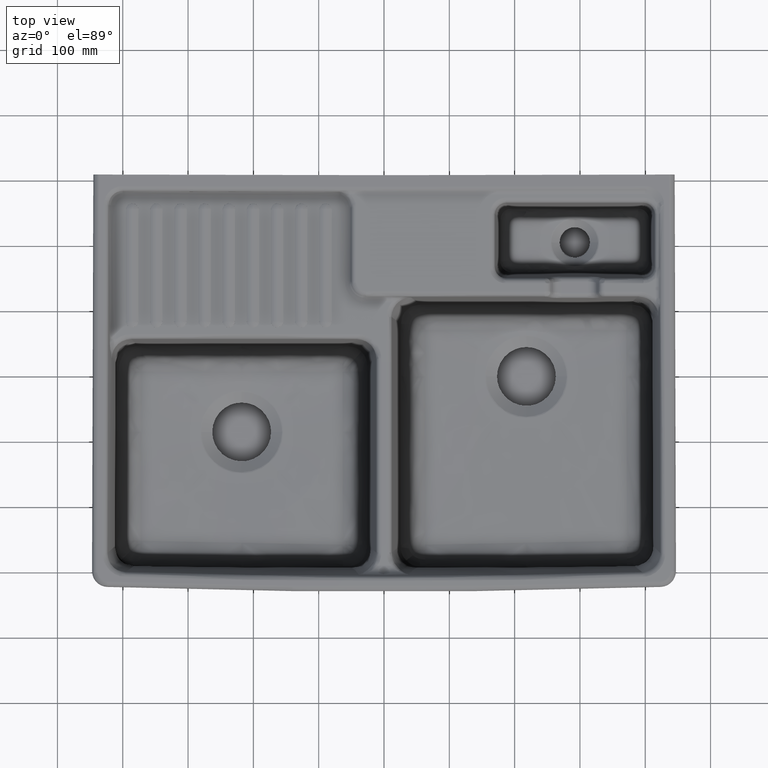
[diagram: clean part render]
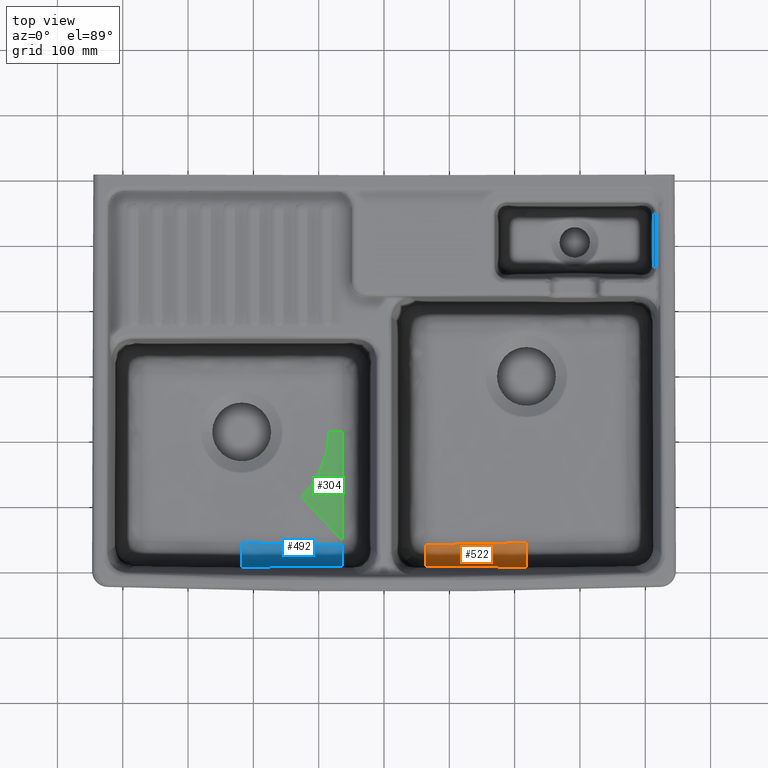
[diagram: same view with three faces highlighted in distinct colors, each labeled with its STEP entity id]
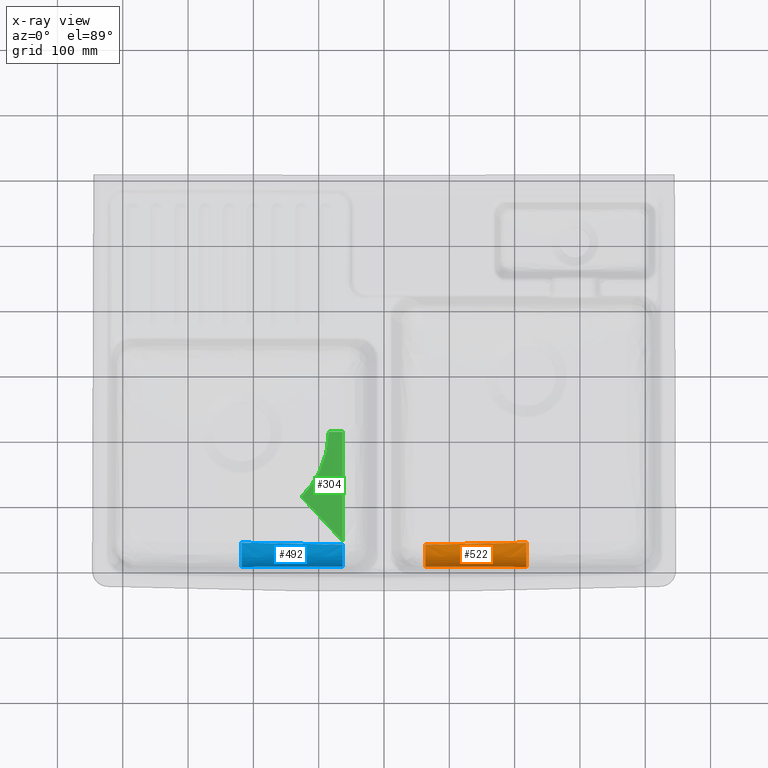
[diagram: x-ray of the same camera — body ghosted, the three highlighted faces saturated]
A machine part, top view with three faces highlighted in distinct colors.
The next image is the same camera in x-ray (body ghosted, the three faces saturated) — at least one of them is partly hidden behind the body in this view.
Their STEP definitions:

[orange] entity #522 — the highlighted face is a freeform B-spline surface patch.
#522=ADVANCED_FACE('',(#1379),#947,.T.);
#947=B_SPLINE_SURFACE_WITH_KNOTS('',6,4,((#32432,#32433,#32434,#32435,#32436,
#32437,#32438,#32439,#32440,#32441,#32442,#32443,#32444),(#32445,#32446,
#32447,#32448,#32449,#32450,#32451,#32452,#32453,#32454,#32455,#32456,#32457),
(#32458,#32459,#32460,#32461,#32462,#32463,#32464,#32465,#32466,#32467,
#32468,#32469,#32470),(#32471,#32472,#32473,#32474,#32475,#32476,#32477,
#32478,#32479,#32480,#32481,#32482,#32483),(#32484,#32485,#32486,#32487,
#32488,#32489,#32490,#32491,#32492,#32493,#32494,#32495,#32496),(#32497,
#32498,#32499,#32500,#32501,#32502,#32503,#32504,#32505,#32506,#32507,#32508,
#32509),(#32510,#32511,#32512,#32513,#32514,#32515,#32516,#32517,#32518,
#32519,#32520,#32521,#32522),(#32523,#32524,#32525,#32526,#32527,#32528,
#32529,#32530,#32531,#32532,#32533,#32534,#32535),(#32536,#32537,#32538,
#32539,#32540,#32541,#32542,#32543,#32544,#32545,#32546,#32547,#32548),
(#32549,#32550,#32551,#32552,#32553,#32554,#32555,#32556,#32557,#32558,
#32559,#32560,#32561),(#32562,#32563,#32564,#32565,#32566,#32567,#32568,
#32569,#32570,#32571,#32572,#32573,#32574),(#32575,#32576,#32577,#32578,
#32579,#32580,#32581,#32582,#32583,#32584,#32585,#32586,#32587),(#32588,
#32589,#32590,#32591,#32592,#32593,#32594,#32595,#32596,#32597,#32598,#32599,
#32600),(#32601,#32602,#32603,#32604,#32605,#32606,#32607,#32608,#32609,
#32610,#32611,#32612,#32613),(#32614,#32615,#32616,#32617,#32618,#32619,
#32620,#32621,#32622,#32623,#32624,#32625,#32626),(#32627,#32628,#32629,
#32630,#32631,#32632,#32633,#32634,#32635,#32636,#32637,#32638,#32639),
(#32640,#32641,#32642,#32643,#32644,#32645,#32646,#32647,#32648,#32649,
#32650,#32651,#32652),(#32653,#32654,#32655,#32656,#32657,#32658,#32659,
#32660,#32661,#32662,#32663,#32664,#32665),(#32666,#32667,#32668,#32669,
#32670,#32671,#32672,#32673,#32674,#32675,#32676,#32677,#32678)),
 .UNSPECIFIED.,.F.,.F.,.F.,(7,6,6,7),(5,4,4,5),(0.,0.00980392156862745,
0.990196078431373,1.),(0.,0.0099009900990099,0.990197039505931,1.),
 .UNSPECIFIED.);
#1379=FACE_OUTER_BOUND('',#1840,.T.);
#1840=EDGE_LOOP('',(#3787,#3788,#3789,#3790,#3791,#3792));
#3787=ORIENTED_EDGE('',*,*,#6047,.F.);
#3788=ORIENTED_EDGE('',*,*,#6045,.T.);
#3789=ORIENTED_EDGE('',*,*,#5923,.T.);
#3790=ORIENTED_EDGE('',*,*,#5925,.T.);
#3791=ORIENTED_EDGE('',*,*,#5927,.T.);
#3792=ORIENTED_EDGE('',*,*,#6048,.F.);
#4775=VERTEX_POINT('',#24862);
#4850=VERTEX_POINT('',#28327);
#4853=VERTEX_POINT('',#28507);
#4854=VERTEX_POINT('',#28540);
#4931=VERTEX_POINT('',#32240);
#4932=VERTEX_POINT('',#32422);
#5923=EDGE_CURVE('',#4850,#4775,#7118,.T.);
#5925=EDGE_CURVE('',#4775,#4853,#7120,.T.);
#5927=EDGE_CURVE('',#4853,#4854,#7122,.T.);
#6045=EDGE_CURVE('',#4931,#4850,#7240,.T.);
#6047=EDGE_CURVE('',#4931,#4932,#7242,.T.);
#6048=EDGE_CURVE('',#4932,#4854,#7243,.T.);
#7118=B_SPLINE_CURVE_WITH_KNOTS('',3,(#28461,#28462,#28463,#28464),
 .UNSPECIFIED.,.F.,.F.,(4,4),(0.,1.),.UNSPECIFIED.);
#7120=B_SPLINE_CURVE_WITH_KNOTS('',4,(#28508,#28509,#28510,#28511,#28512),
 .UNSPECIFIED.,.F.,.F.,(5,5),(0.,1.),.UNSPECIFIED.);
#7122=B_SPLINE_CURVE_WITH_KNOTS('',4,(#28541,#28542,#28543,#28544,#28545),
 .UNSPECIFIED.,.F.,.F.,(5,5),(0.,1.),.UNSPECIFIED.);
#7240=B_SPLINE_CURVE_WITH_KNOTS('',4,(#32227,#32228,#32229,#32230,#32231,
#32232,#32233,#32234,#32235,#32236,#32237,#32238,#32239),.UNSPECIFIED.,
 .F.,.F.,(5,4,4,5),(0.,2.20367828642686E-5,0.999999365137053,1.),
 .UNSPECIFIED.);
#7242=B_SPLINE_CURVE_WITH_KNOTS('',3,(#32416,#32417,#32418,#32419,#32420,
#32421),.UNSPECIFIED.,.F.,.F.,(4,2,4),(0.,0.5,1.),.UNSPECIFIED.);
#7243=B_SPLINE_CURVE_WITH_KNOTS('',4,(#32423,#32424,#32425,#32426,#32427,
#32428,#32429,#32430,#32431),.UNSPECIFIED.,.F.,.F.,(5,4,5),(0.,3.90965346768355E-5,
1.),.UNSPECIFIED.);
#24862=CARTESIAN_POINT('',(63.2057800198923,-257.820371065136,-177.534524002025));
#28327=CARTESIAN_POINT('',(217.999999952425,-254.825400860688,-178.25352731095));
#28461=CARTESIAN_POINT('',(218.,-254.825400651694,-178.253521380249));
#28462=CARTESIAN_POINT('',(166.400899993179,-255.823880322406,-178.22295236493));
#28463=CARTESIAN_POINT('',(114.803340159917,-256.822329833414,-177.894827462834));
#28464=CARTESIAN_POINT('',(63.2057799999999,-257.820732138108,-177.53451909626));
#28507=CARTESIAN_POINT('',(63.2057793043461,-265.858090734706,-176.254622383121));
#28508=CARTESIAN_POINT('',(63.20578,-257.820732138108,-177.53451909626));
#28509=CARTESIAN_POINT('',(63.2057799998862,-259.90655503433,-177.502998394889));
#28510=CARTESIAN_POINT('',(63.2057795613976,-261.946607478722,-177.269210507462));
#28511=CARTESIAN_POINT('',(63.2057787169865,-263.933062064936,-176.848103295965));
#28512=CARTESIAN_POINT('',(63.2057775087137,-265.85809142506,-176.254624622383));
#28540=CARTESIAN_POINT('',(63.20576,-280.81509,-166.51808));
#28541=CARTESIAN_POINT('',(63.2057775087137,-265.85809142506,-176.254624622383));
#28542=CARTESIAN_POINT('',(63.2057748216729,-270.139105300877,-174.934805564433));
#28543=CARTESIAN_POINT('',(63.2057703351197,-274.116334880762,-172.762507051678));
#28544=CARTESIAN_POINT('',(63.2057645116555,-277.703691973891,-169.902131014568));
#28545=CARTESIAN_POINT('',(63.2057580489042,-280.815089329528,-166.518079383552));
#32227=CARTESIAN_POINT('',(218.000000000009,-292.606604449561,-139.739663774872));
#32228=CARTESIAN_POINT('',(218.000000000009,-292.606595837171,-139.740005331154));
#32229=CARTESIAN_POINT('',(218.000000000009,-292.60658722478,-139.740346887436));
#32230=CARTESIAN_POINT('',(218.000000000009,-292.60657861239,-139.740688443718));
#32231=CARTESIAN_POINT('',(218.000000000009,-292.60657,-139.74103));
#32232=CARTESIAN_POINT('',(218.000000000009,-292.21576,-155.24005));
#32233=CARTESIAN_POINT('',(218.000000000009,-283.7851,-168.96762));
#32234=CARTESIAN_POINT('',(218.000000000009,-270.31989,-177.71001));
#32235=CARTESIAN_POINT('',(218.000000000009,-254.82544,-178.25352));
#32236=CARTESIAN_POINT('',(218.000000000009,-254.825430162924,-178.253520345062));
#32237=CARTESIAN_POINT('',(218.000000000009,-254.825420325849,-178.253520690124));
#32238=CARTESIAN_POINT('',(218.000000000009,-254.825410488774,-178.253521035187));
#32239=CARTESIAN_POINT('',(218.000000000009,-254.825400651699,-178.253521380249));
#32240=CARTESIAN_POINT('',(218.000508237254,-292.606628218391,-139.739664313358));
#32416=CARTESIAN_POINT('',(218.000580837141,-292.606650224797,-139.739664869517));
#32417=CARTESIAN_POINT('',(192.164233003646,-292.502845780053,-139.733178668525));
#32418=CARTESIAN_POINT('',(166.327136992097,-292.309271055832,-139.726338551042));
#32419=CARTESIAN_POINT('',(114.71604809666,-292.046065347175,-139.72402705489));
#32420=CARTESIAN_POINT('',(88.9446656187388,-291.987950458697,-139.729010979282));
#32421=CARTESIAN_POINT('',(63.2046941400738,-291.99791865294,-139.73987816516));
#32422=CARTESIAN_POINT('',(63.2052070694674,-291.997928374174,-139.739878605077));
#32423=CARTESIAN_POINT('',(63.2057199984361,-291.997938089054,-139.739879198553));
#32424=CARTESIAN_POINT('',(63.2057199988271,-291.99792606679,-139.740166898915));
#32425=CARTESIAN_POINT('',(63.205719999218,-291.997914044527,-139.740454599276));
#32426=CARTESIAN_POINT('',(63.205719999609,-291.997902022263,-139.740742299638));
#32427=CARTESIAN_POINT('',(63.20572,-291.99789,-139.74103));
#32428=CARTESIAN_POINT('',(63.20573,-291.6904,-147.09946));
#32429=CARTESIAN_POINT('',(63.20573,-289.49448,-154.45363));
#32430=CARTESIAN_POINT('',(63.20575,-285.75455,-161.14577));
#32431=CARTESIAN_POINT('',(63.20576,-280.81509,-166.51808));
#32432=CARTESIAN_POINT('',(219.5479762724,-254.16864853728,-178.27604574192));
#32433=CARTESIAN_POINT('',(219.5479754543,-254.32535990296,-178.27064350644));
#32434=CARTESIAN_POINT('',(219.5479746362,-254.48207126864,-178.26524127096));
#32435=CARTESIAN_POINT('',(219.5479738181,-254.63878263432,-178.25983903548));
#32436=CARTESIAN_POINT('',(219.547973,-254.795494,-178.2544368));
#32437=CARTESIAN_POINT('',(219.547892,-270.3114708,-177.719562));
#32438=CARTESIAN_POINT('',(219.5478392,-283.7855836,-168.9742458));
#32439=CARTESIAN_POINT('',(219.5476514,-292.2066946,-155.2448428));
#32440=CARTESIAN_POINT('',(219.5476022,-292.6128088,-139.74103));
#32441=CARTESIAN_POINT('',(219.547601708,-292.616869942,-139.585991872));
#32442=CARTESIAN_POINT('',(219.547601216,-292.620931084,-139.430953744));
#32443=CARTESIAN_POINT('',(219.547600724,-292.624992226,-139.275915616));
#32444=CARTESIAN_POINT('',(219.547600232,-292.629053368,-139.120877488));
#32445=CARTESIAN_POINT('',(219.289980227,-254.1737844844,-178.2759510856));
#32446=CARTESIAN_POINT('',(219.28997954525,-254.3304596133,-178.2705343142));
#32447=CARTESIAN_POINT('',(219.2899788635,-254.4871347422,-178.2651175428));
#32448=CARTESIAN_POINT('',(219.28997818175,-254.6438098711,-178.2597007714));
#32449=CARTESIAN_POINT('',(219.2899775,-254.800485,-178.254284));
#32450=CARTESIAN_POINT('',(219.28991,-270.312874,-177.71797));
#32451=CARTESIAN_POINT('',(219.289866,-283.785503,-168.9731415));
#32452=CARTESIAN_POINT('',(219.2897095,-292.2082055,-155.244044));
#32453=CARTESIAN_POINT('',(219.2896685,-292.611769,-139.74103));
#32454=CARTESIAN_POINT('',(219.28966809,-292.615804635,-139.58599986));
#32455=CARTESIAN_POINT('',(219.28966768,-292.61984027,-139.43096972));
#32456=CARTESIAN_POINT('',(219.28966727,-292.623875905,-139.27593958));
#32457=CARTESIAN_POINT('',(219.28966686,-292.62791154,-139.12090944));
#32458=CARTESIAN_POINT('',(219.0319841816,-254.17892043152,-178.27585642928));
#32459=CARTESIAN_POINT('',(219.0319836362,-254.33555932364,-178.27042512196));
#32460=CARTESIAN_POINT('',(219.0319830908,-254.49219821576,-178.26499381464));
#32461=CARTESIAN_POINT('',(219.0319825454,-254.64883710788,-178.25956250732));
#32462=CARTESIAN_POINT('',(219.031982,-254.805476,-178.2541312));
#32463=CARTESIAN_POINT('',(219.031928,-270.3142772,-177.716378));
#32464=CARTESIAN_POINT('',(219.0318928,-283.7854224,-168.9720372));
#32465=CARTESIAN_POINT('',(219.0317676,-292.2097164,-155.2432452));
#32466=CARTESIAN_POINT('',(219.0317348,-292.6107292,-139.74103));
#32467=CARTESIAN_POINT('',(219.031734472,-292.614739328,-139.586007848));
#32468=CARTESIAN_POINT('',(219.031734144,-292.618749456,-139.430985696));
#32469=CARTESIAN_POINT('',(219.031733816,-292.622759584,-139.275963544));
#32470=CARTESIAN_POINT('',(219.031733488,-292.626769712,-139.120941392));
#32471=CARTESIAN_POINT('',(218.7739881362,-254.18405637864,-178.27576177296));
#32472=CARTESIAN_POINT('',(218.77398772715,-254.34065903398,-178.27031592972));
#32473=CARTESIAN_POINT('',(218.7739873181,-254.49726168932,-178.26487008648));
#32474=CARTESIAN_POINT('',(218.77398690905,-254.65386434466,-178.25942424324));
#32475=CARTESIAN_POINT('',(218.7739865,-254.810467,-178.2539784));
#32476=CARTESIAN_POINT('',(218.773946,-270.3156804,-177.714786));
#32477=CARTESIAN_POINT('',(218.7739196,-283.7853418,-168.9709329));
#32478=CARTESIAN_POINT('',(218.7738257,-292.2112273,-155.2424464));
#32479=CARTESIAN_POINT('',(218.7738011,-292.6096894,-139.74103));
#32480=CARTESIAN_POINT('',(218.773800854,-292.613674021,-139.586015836));
#32481=CARTESIAN_POINT('',(218.773800608,-292.617658642,-139.431001672));
#32482=CARTESIAN_POINT('',(218.773800362,-292.621643263,-139.275987508));
#32483=CARTESIAN_POINT('',(218.773800116,-292.625627884,-139.120973344));
#32484=CARTESIAN_POINT('',(218.5159920908,-254.18919232576,-178.27566711664));
#32485=CARTESIAN_POINT('',(218.5159918181,-254.34575874432,-178.27020673748));
#32486=CARTESIAN_POINT('',(218.5159915454,-254.50232516288,-178.26474635832));
#32487=CARTESIAN_POINT('',(218.5159912727,-254.65889158144,-178.25928597916));
#32488=CARTESIAN_POINT('',(218.515991,-254.815458,-178.2538256));
#32489=CARTESIAN_POINT('',(218.515964,-270.3170836,-177.713194));
#32490=CARTESIAN_POINT('',(218.5159464,-283.7852612,-168.9698286));
#32491=CARTESIAN_POINT('',(218.5158838,-292.2127382,-155.2416476));
#32492=CARTESIAN_POINT('',(218.5158674,-292.6086496,-139.74103));
#32493=CARTESIAN_POINT('',(218.515867236,-292.612608714,-139.586023824));
#32494=CARTESIAN_POINT('',(218.515867072,-292.616567828,-139.431017648));
#32495=CARTESIAN_POINT('',(218.515866908,-292.620526942,-139.276011472));
#32496=CARTESIAN_POINT('',(218.515866744,-292.624486056,-139.121005296));
#32497=CARTESIAN_POINT('',(218.2579960454,-254.19432827288,-178.27557246032));
#32498=CARTESIAN_POINT('',(218.25799590905,-254.35085845466,-178.27009754524));
#32499=CARTESIAN_POINT('',(218.2579957727,-254.50738863644,-178.26462263016));
#32500=CARTESIAN_POINT('',(218.25799563635,-254.66391881822,-178.25914771508));
#32501=CARTESIAN_POINT('',(218.2579955,-254.820449,-178.2536728));
#32502=CARTESIAN_POINT('',(218.257982,-270.3184868,-177.711602));
#32503=CARTESIAN_POINT('',(218.2579732,-283.7851806,-168.9687243));
#32504=CARTESIAN_POINT('',(218.2579419,-292.2142491,-155.2408488));
#32505=CARTESIAN_POINT('',(218.2579337,-292.6076098,-139.74103));
#32506=CARTESIAN_POINT('',(218.257933618,-292.611543407,-139.586031812));
#32507=CARTESIAN_POINT('',(218.257933536,-292.615477014,-139.431033624));
#32508=CARTESIAN_POINT('',(218.257933454,-292.619410621,-139.276035436));
#32509=CARTESIAN_POINT('',(218.257933372,-292.623344228,-139.121037248));
#32510=CARTESIAN_POINT('',(218.,-254.19946422,-178.275477804));
#32511=CARTESIAN_POINT('',(218.,-254.355958165,-178.269988353));
#32512=CARTESIAN_POINT('',(218.,-254.51245211,-178.264498902));
#32513=CARTESIAN_POINT('',(218.,-254.668946055,-178.259009451));
#32514=CARTESIAN_POINT('',(218.,-254.82544,-178.25352));
#32515=CARTESIAN_POINT('',(218.,-270.31989,-177.71001));
#32516=CARTESIAN_POINT('',(218.,-283.7851,-168.96762));
#32517=CARTESIAN_POINT('',(218.,-292.21576,-155.24005));
#32518=CARTESIAN_POINT('',(218.,-292.60657,-139.74103));
#32519=CARTESIAN_POINT('',(218.,-292.6104781,-139.5860398));
#32520=CARTESIAN_POINT('',(218.,-292.6143862,-139.4310496));
#32521=CARTESIAN_POINT('',(218.,-292.6182943,-139.2760594));
#32522=CARTESIAN_POINT('',(218.,-292.6222024,-139.1210692));
#32523=CARTESIAN_POINT('',(192.20039546,-254.713058932,-178.266012172));
#32524=CARTESIAN_POINT('',(192.200409095,-254.865929199,-178.259069129));
#32525=CARTESIAN_POINT('',(192.20042273,-255.018799466,-178.252126086));
#32526=CARTESIAN_POINT('',(192.200436365,-255.171669733,-178.245183043));
#32527=CARTESIAN_POINT('',(192.20045,-255.32454,-178.23824));
#32528=CARTESIAN_POINT('',(192.2018,-270.46021,-177.55081));
#32529=CARTESIAN_POINT('',(192.20268,-283.77704,-168.85719));
#32530=CARTESIAN_POINT('',(192.20581,-292.36685,-155.16017));
#32531=CARTESIAN_POINT('',(192.20663,-292.50259,-139.74103));
#32532=CARTESIAN_POINT('',(192.2066382,-292.5039474,-139.5868386));
#32533=CARTESIAN_POINT('',(192.2066464,-292.5053048,-139.4326472));
#32534=CARTESIAN_POINT('',(192.2066546,-292.5066622,-139.2784558));
#32535=CARTESIAN_POINT('',(192.2066628,-292.5080196,-139.1242644));
#32536=CARTESIAN_POINT('',(166.401102336,-255.2133273,-178.171998456));
#32537=CARTESIAN_POINT('',(166.401134252,-255.365905475,-178.170663842));
#32538=CARTESIAN_POINT('',(166.401166168,-255.51848365,-178.169329228));
#32539=CARTESIAN_POINT('',(166.401198084,-255.671061825,-178.167994614));
#32540=CARTESIAN_POINT('',(166.40123,-255.82364,-178.16666));
#32541=CARTESIAN_POINT('',(166.40439,-270.93039,-178.03452));
#32542=CARTESIAN_POINT('',(166.40759,-283.67145,-168.65327));
#32543=CARTESIAN_POINT('',(166.40909,-291.0672,-154.68199));
#32544=CARTESIAN_POINT('',(166.41051,-292.32346,-139.74103));
#32545=CARTESIAN_POINT('',(166.4105242,-292.3360226,-139.5916204));
#32546=CARTESIAN_POINT('',(166.4105384,-292.3485852,-139.4422108));
#32547=CARTESIAN_POINT('',(166.4105526,-292.3611478,-139.2928012));
#32548=CARTESIAN_POINT('',(166.4105668,-292.3737104,-139.1433916));
#32549=CARTESIAN_POINT('',(140.602114456,-255.72255548,-178.082372244));
#32550=CARTESIAN_POINT('',(140.602143342,-255.87260411,-178.073589183));
#32551=CARTESIAN_POINT('',(140.602172228,-256.02265274,-178.064806122));
#32552=CARTESIAN_POINT('',(140.602201114,-256.17270137,-178.056023061));
#32553=CARTESIAN_POINT('',(140.60223,-256.32275,-178.04724));
#32554=CARTESIAN_POINT('',(140.60509,-271.17905,-177.17763));
#32555=CARTESIAN_POINT('',(140.60654,-283.68381,-168.47897));
#32556=CARTESIAN_POINT('',(140.60791,-292.45505,-154.48921));
#32557=CARTESIAN_POINT('',(140.61055,-292.13708,-139.74103));
#32558=CARTESIAN_POINT('',(140.6105764,-292.1339003,-139.5935482));
#32559=CARTESIAN_POINT('',(140.6106028,-292.1307206,-139.4460664));
#32560=CARTESIAN_POINT('',(140.6106292,-292.1275409,-139.2985846));
#32561=CARTESIAN_POINT('',(140.6106556,-292.1243612,-139.1511028));
#32562=CARTESIAN_POINT('',(114.803441104,-256.243581872,-177.896008652));
#32563=CARTESIAN_POINT('',(114.803423328,-256.388146404,-177.894911489));
#32564=CARTESIAN_POINT('',(114.803405552,-256.532710936,-177.893814326));
#32565=CARTESIAN_POINT('',(114.803387776,-256.677275468,-177.892717163));
#32566=CARTESIAN_POINT('',(114.80337,-256.82184,-177.89162));
#32567=CARTESIAN_POINT('',(114.80161,-271.13516,-177.78299));
#32568=CARTESIAN_POINT('',(114.80415,-283.77353,-168.29446));
#32569=CARTESIAN_POINT('',(114.80827,-290.91852,-154.48538));
#32570=CARTESIAN_POINT('',(114.8075,-292.01508,-139.74103));
#32571=CARTESIAN_POINT('',(114.8074923,-292.0260456,-139.5935865));
#32572=CARTESIAN_POINT('',(114.8074846,-292.0370112,-139.446143));
#32573=CARTESIAN_POINT('',(114.8074769,-292.0479768,-139.2986995));
#32574=CARTESIAN_POINT('',(114.8074692,-292.0589424,-139.151256));
#32575=CARTESIAN_POINT('',(89.004496976,-256.73978418,-177.729366512));
#32576=CARTESIAN_POINT('',(89.004512732,-256.885068135,-177.725697384));
#32577=CARTESIAN_POINT('',(89.004528488,-257.03035209,-177.722028256));
#32578=CARTESIAN_POINT('',(89.004544244,-257.175636045,-177.718359128));
#32579=CARTESIAN_POINT('',(89.00456,-257.32092,-177.71469));
#32580=CARTESIAN_POINT('',(89.00612,-271.70547,-177.35141));
#32581=CARTESIAN_POINT('',(89.00517,-283.76093,-168.08298));
#32582=CARTESIAN_POINT('',(89.00314,-291.54376,-153.99164));
#32583=CARTESIAN_POINT('',(89.00417,-291.98758,-139.74103));
#32584=CARTESIAN_POINT('',(89.0041803,-291.9920182,-139.5985239));
#32585=CARTESIAN_POINT('',(89.0041906,-291.9964564,-139.4560178));
#32586=CARTESIAN_POINT('',(89.0042009,-292.0008946,-139.3135117));
#32587=CARTESIAN_POINT('',(89.0042112,-292.0053328,-139.1710056));
#32588=CARTESIAN_POINT('',(63.20578,-257.25082854,-177.54311702));
#32589=CARTESIAN_POINT('',(63.20578,-257.393123905,-177.540970265));
#32590=CARTESIAN_POINT('',(63.20578,-257.53541927,-177.53882351));
#32591=CARTESIAN_POINT('',(63.20578,-257.677714635,-177.536676755));
#32592=CARTESIAN_POINT('',(63.20578,-257.82001,-177.53453));
#32593=CARTESIAN_POINT('',(63.20578,-271.90866,-177.32198));
#32594=CARTESIAN_POINT('',(63.20576,-283.90921,-167.88138));
#32595=CARTESIAN_POINT('',(63.20573,-291.40961,-153.81898));
#32596=CARTESIAN_POINT('',(63.20572,-291.99789,-139.74103));
#32597=CARTESIAN_POINT('',(63.2057199,-292.0037728,-139.6002505));
#32598=CARTESIAN_POINT('',(63.2057198,-292.0096556,-139.459471));
#32599=CARTESIAN_POINT('',(63.2057197,-292.0155384,-139.3186915));
#32600=CARTESIAN_POINT('',(63.2057196,-292.0214212,-139.177912));
#32601=CARTESIAN_POINT('',(62.94779283024,-257.2559389836,-177.54125452508));
#32602=CARTESIAN_POINT('',(62.94779267268,-257.3982044627,-177.53912299381));
#32603=CARTESIAN_POINT('',(62.94779251512,-257.5404699418,-177.53699146254));
#32604=CARTESIAN_POINT('',(62.94779235756,-257.6827354209,-177.53485993127));
#32605=CARTESIAN_POINT('',(62.9477922,-257.8250009,-177.5327284));
#32606=CARTESIAN_POINT('',(62.9477766,-271.9106919,-177.3216857));
#32607=CARTESIAN_POINT('',(62.9477659,-283.9106928,-167.879364));
#32608=CARTESIAN_POINT('',(62.9477559,-291.4082685,-153.8172534));
#32609=CARTESIAN_POINT('',(62.9477355,-291.9979931,-139.74103));
#32610=CARTESIAN_POINT('',(62.947735296,-292.003890346,-139.600267766));
#32611=CARTESIAN_POINT('',(62.947735092,-292.009787592,-139.459505532));
#32612=CARTESIAN_POINT('',(62.947734888,-292.015684838,-139.318743298));
#32613=CARTESIAN_POINT('',(62.947734684,-292.021582084,-139.177981064));
#32614=CARTESIAN_POINT('',(62.68980566048,-257.2610494272,-177.53939203016));
#32615=CARTESIAN_POINT('',(62.68980534536,-257.4032850204,-177.53727572262));
#32616=CARTESIAN_POINT('',(62.68980503024,-257.5455206136,-177.53515941508));
#32617=CARTESIAN_POINT('',(62.68980471512,-257.6877562068,-177.53304310754));
#32618=CARTESIAN_POINT('',(62.6898044,-257.8299918,-177.5309268));
#32619=CARTESIAN_POINT('',(62.6897732,-271.9127238,-177.3213914));
#32620=CARTESIAN_POINT('',(62.6897718,-283.9121756,-167.877348));
#32621=CARTESIAN_POINT('',(62.6897818,-291.406927,-153.8155268));
#32622=CARTESIAN_POINT('',(62.689751,-291.9980962,-139.74103));
#32623=CARTESIAN_POINT('',(62.689750692,-292.004007892,-139.600285032));
#32624=CARTESIAN_POINT('',(62.689750384,-292.009919584,-139.459540064));
#32625=CARTESIAN_POINT('',(62.689750076,-292.015831276,-139.318795096));
#32626=CARTESIAN_POINT('',(62.689749768,-292.021742968,-139.178050128));
#32627=CARTESIAN_POINT('',(62.43181849072,-257.2661598708,-177.53752953524));
#32628=CARTESIAN_POINT('',(62.43181801804,-257.4083655781,-177.53542845143));
#32629=CARTESIAN_POINT('',(62.43181754536,-257.5505712854,-177.53332736762));
#32630=CARTESIAN_POINT('',(62.43181707268,-257.6927769927,-177.53122628381));
#32631=CARTESIAN_POINT('',(62.4318166,-257.8349827,-177.5291252));
#32632=CARTESIAN_POINT('',(62.4317698,-271.9147557,-177.3210971));
#32633=CARTESIAN_POINT('',(62.4317777,-283.9136584,-167.875332));
#32634=CARTESIAN_POINT('',(62.4318077,-291.4055855,-153.8138002));
#32635=CARTESIAN_POINT('',(62.4317665,-291.9981993,-139.74103));
#32636=CARTESIAN_POINT('',(62.431766088,-292.004125438,-139.600302298));
#32637=CARTESIAN_POINT('',(62.431765676,-292.010051576,-139.459574596));
#32638=CARTESIAN_POINT('',(62.431765264,-292.015977714,-139.318846894));
#32639=CARTESIAN_POINT('',(62.431764852,-292.021903852,-139.178119192));
#32640=CARTESIAN_POINT('',(62.17383132096,-257.2712703144,-177.53566704032));
#32641=CARTESIAN_POINT('',(62.17383069072,-257.4134461358,-177.53358118024));
#32642=CARTESIAN_POINT('',(62.17383006048,-257.5556219572,-177.53149532016));
#32643=CARTESIAN_POINT('',(62.17382943024,-257.6977977786,-177.52940946008));
#32644=CARTESIAN_POINT('',(62.1738288,-257.8399736,-177.5273236));
#32645=CARTESIAN_POINT('',(62.1737664,-271.9167876,-177.3208028));
#32646=CARTESIAN_POINT('',(62.1737836,-283.9151412,-167.873316));
#32647=CARTESIAN_POINT('',(62.1738336,-291.404244,-153.8120736));
#32648=CARTESIAN_POINT('',(62.173782,-291.9983024,-139.74103));
#32649=CARTESIAN_POINT('',(62.173781484,-292.004242984,-139.600319564));
#32650=CARTESIAN_POINT('',(62.173780968,-292.010183568,-139.459609128));
#32651=CARTESIAN_POINT('',(62.173780452,-292.016124152,-139.318898692));
#32652=CARTESIAN_POINT('',(62.173779936,-292.022064736,-139.178188256));
#32653=CARTESIAN_POINT('',(61.9158441512,-257.276380758,-177.5338045454));
#32654=CARTESIAN_POINT('',(61.9158433634,-257.4185266935,-177.53173390905));
#32655=CARTESIAN_POINT('',(61.9158425756,-257.560672629,-177.5296632727));
#32656=CARTESIAN_POINT('',(61.9158417878,-257.7028185645,-177.52759263635));
#32657=CARTESIAN_POINT('',(61.915841,-257.8449645,-177.525522));
#32658=CARTESIAN_POINT('',(61.915763,-271.9188195,-177.3205085));
#32659=CARTESIAN_POINT('',(61.9157895,-283.916624,-167.8713));
#32660=CARTESIAN_POINT('',(61.9158595,-291.4029025,-153.810347));
#32661=CARTESIAN_POINT('',(61.9157975,-291.9984055,-139.74103));
#32662=CARTESIAN_POINT('',(61.91579688,-292.00436053,-139.60033683));
#32663=CARTESIAN_POINT('',(61.91579626,-292.01031556,-139.45964366));
#32664=CARTESIAN_POINT('',(61.91579564,-292.01627059,-139.31895049));
#32665=CARTESIAN_POINT('',(61.91579502,-292.02222562,-139.17825732));
#32666=CARTESIAN_POINT('',(61.65785698144,-257.2814912016,-177.53194205048));
#32667=CARTESIAN_POINT('',(61.65785603608,-257.4236072512,-177.52988663786));
#32668=CARTESIAN_POINT('',(61.65785509072,-257.5657233008,-177.52783122524));
#32669=CARTESIAN_POINT('',(61.65785414536,-257.7078393504,-177.52577581262));
#32670=CARTESIAN_POINT('',(61.6578532,-257.8499554,-177.5237204));
#32671=CARTESIAN_POINT('',(61.6577596,-271.9208514,-177.3202142));
#32672=CARTESIAN_POINT('',(61.6577954,-283.9181068,-167.869284));
#32673=CARTESIAN_POINT('',(61.6578854,-291.401561,-153.8086204));
#32674=CARTESIAN_POINT('',(61.657813,-291.9985086,-139.74103));
#32675=CARTESIAN_POINT('',(61.657812276,-292.004478076,-139.600354096));
#32676=CARTESIAN_POINT('',(61.657811552,-292.010447552,-139.459678192));
#32677=CARTESIAN_POINT('',(61.657810828,-292.016417028,-139.319002288));
#32678=CARTESIAN_POINT('',(61.657810104,-292.022386504,-139.178326384));

[blue] entity #492 — the highlighted face is a freeform B-spline surface patch.
#492=ADVANCED_FACE('',(#1349),#919,.T.);
#919=B_SPLINE_SURFACE_WITH_KNOTS('',5,3,((#29498,#29499,#29500,#29501,#29502,
#29503,#29504),(#29505,#29506,#29507,#29508,#29509,#29510,#29511),(#29512,
#29513,#29514,#29515,#29516,#29517,#29518),(#29519,#29520,#29521,#29522,
#29523,#29524,#29525),(#29526,#29527,#29528,#29529,#29530,#29531,#29532),
(#29533,#29534,#29535,#29536,#29537,#29538,#29539),(#29540,#29541,#29542,
#29543,#29544,#29545,#29546),(#29547,#29548,#29549,#29550,#29551,#29552,
#29553),(#29554,#29555,#29556,#29557,#29558,#29559,#29560),(#29561,#29562,
#29563,#29564,#29565,#29566,#29567),(#29568,#29569,#29570,#29571,#29572,
#29573,#29574),(#29575,#29576,#29577,#29578,#29579,#29580,#29581),(#29582,
#29583,#29584,#29585,#29586,#29587,#29588),(#29589,#29590,#29591,#29592,
#29593,#29594,#29595),(#29596,#29597,#29598,#29599,#29600,#29601,#29602),
(#29603,#29604,#29605,#29606,#29607,#29608,#29609)),.UNSPECIFIED.,.F.,.F.,
 .F.,(6,5,5,6),(4,3,4),(0.,0.00980392156862745,0.990196078431373,1.),(0.,
0.99009900990099,1.),.UNSPECIFIED.);
#1349=FACE_OUTER_BOUND('',#1810,.T.);
#1810=EDGE_LOOP('',(#3587,#3588,#3589,#3590));
#3587=ORIENTED_EDGE('',*,*,#5962,.F.);
#3588=ORIENTED_EDGE('',*,*,#5960,.T.);
#3589=ORIENTED_EDGE('',*,*,#5810,.T.);
#3590=ORIENTED_EDGE('',*,*,#5963,.F.);
#4619=VERTEX_POINT('',#18396);
#4784=VERTEX_POINT('',#25394);
#4876=VERTEX_POINT('',#29434);
#4877=VERTEX_POINT('',#29488);
#5810=EDGE_CURVE('',#4619,#4784,#7005,.T.);
#5960=EDGE_CURVE('',#4876,#4619,#7155,.T.);
#5962=EDGE_CURVE('',#4876,#4877,#7157,.T.);
#5963=EDGE_CURVE('',#4877,#4784,#7158,.T.);
#7005=B_SPLINE_CURVE_WITH_KNOTS('',5,(#25395,#25396,#25397,#25398,#25399,
#25400),.UNSPECIFIED.,.F.,.F.,(6,6),(0.,1.),.UNSPECIFIED.);
#7155=B_SPLINE_CURVE_WITH_KNOTS('',3,(#29430,#29431,#29432,#29433),
 .UNSPECIFIED.,.F.,.F.,(4,4),(0.,1.),.UNSPECIFIED.);
#7157=B_SPLINE_CURVE_WITH_KNOTS('',3,(#29482,#29483,#29484,#29485,#29486,
#29487),.UNSPECIFIED.,.F.,.F.,(4,2,4),(0.,0.5,1.),.UNSPECIFIED.);
#7158=B_SPLINE_CURVE_WITH_KNOTS('',4,(#29489,#29490,#29491,#29492,#29493,
#29494,#29495,#29496,#29497),.UNSPECIFIED.,.F.,.F.,(5,4,5),(0.,2.13903242794021E-5,
1.),.UNSPECIFIED.);
#18396=CARTESIAN_POINT('',(-63.2057299822408,-257.820010021801,-177.360791794131));
#25394=CARTESIAN_POINT('',(-217.999999960869,-254.825439969591,-178.795169414538));
#25395=CARTESIAN_POINT('',(-63.20573,-257.82001,-177.36079));
#25396=CARTESIAN_POINT('',(-94.16273,-257.22107,-177.68398));
#25397=CARTESIAN_POINT('',(-125.12239,-256.62231,-178.0453));
#25398=CARTESIAN_POINT('',(-156.08174,-256.02322,-178.46774));
#25399=CARTESIAN_POINT('',(-187.0405,-255.42436,-178.76329));
#25400=CARTESIAN_POINT('',(-218.,-254.82544,-178.79517));
#29430=CARTESIAN_POINT('',(-63.205730000377,-291.99780211375,-139.743111793995));
#29431=CARTESIAN_POINT('',(-63.205730000377,-291.214203734092,-158.470406444856));
#29432=CARTESIAN_POINT('',(-63.205730000377,-276.562288841522,-177.133858489629));
#29433=CARTESIAN_POINT('',(-63.205730000377,-257.820009999993,-177.360790000004));
#29434=CARTESIAN_POINT('',(-63.2052045229345,-291.997791201641,-139.743111503573));
#29482=CARTESIAN_POINT('',(-63.2046790381004,-291.99778353583,-139.743111168308));
#29483=CARTESIAN_POINT('',(-88.9446527787221,-291.987840581826,-139.731704697576));
#29484=CARTESIAN_POINT('',(-114.716037741511,-292.045982736664,-139.726181494632));
#29485=CARTESIAN_POINT('',(-166.327131789487,-292.309236962067,-139.727415100393));
#29486=CARTESIAN_POINT('',(-192.164230446332,-292.50283219881,-139.733716652871));
#29487=CARTESIAN_POINT('',(-218.000580837589,-292.606650224799,-139.739664869517));
#29488=CARTESIAN_POINT('',(-218.000508234783,-292.606627965953,-139.739664310747));
#29489=CARTESIAN_POINT('',(-218.000000001711,-292.606603945459,-139.739663744621));
#29490=CARTESIAN_POINT('',(-218.000000001283,-292.606595459095,-139.740000308465));
#29491=CARTESIAN_POINT('',(-218.000000000856,-292.60658697273,-139.74033687231));
#29492=CARTESIAN_POINT('',(-218.000000000428,-292.606578486365,-139.740673436155));
#29493=CARTESIAN_POINT('',(-218.,-292.60657,-139.74101));
#29494=CARTESIAN_POINT('',(-217.99998,-292.20984,-155.47507));
#29495=CARTESIAN_POINT('',(-218.,-283.92941,-169.19995));
#29496=CARTESIAN_POINT('',(-218.,-270.54227,-177.95889));
#29497=CARTESIAN_POINT('',(-218.,-254.82544,-178.79517));
#29498=CARTESIAN_POINT('',(-61.65788,-257.849957,-177.3446305));
#29499=CARTESIAN_POINT('',(-61.657912,-276.573041,-177.12665));
#29500=CARTESIAN_POINT('',(-61.65782,-291.2159105,-158.4460975));
#29501=CARTESIAN_POINT('',(-61.6578235,-291.9985095,-139.74101));
#29502=CARTESIAN_POINT('',(-61.657823535,-292.00633549,-139.553959125));
#29503=CARTESIAN_POINT('',(-61.65782357,-292.01416148,-139.36690825));
#29504=CARTESIAN_POINT('',(-61.657823605,-292.02198747,-139.179857375));
#29505=CARTESIAN_POINT('',(-61.96745,-257.8439676,-177.3478624));
#29506=CARTESIAN_POINT('',(-61.9674756,-276.5710308,-177.12809));
#29507=CARTESIAN_POINT('',(-61.967402,-291.2157884,-158.45068));
#29508=CARTESIAN_POINT('',(-61.9674048,-291.9983856,-139.74101));
#29509=CARTESIAN_POINT('',(-61.967404828,-292.006211572,-139.5539133));
#29510=CARTESIAN_POINT('',(-61.967404856,-292.014037544,-139.3668166));
#29511=CARTESIAN_POINT('',(-61.967404884,-292.021863516,-139.1797199));
#29512=CARTESIAN_POINT('',(-62.27702,-257.8379782,-177.3510943));
#29513=CARTESIAN_POINT('',(-62.2770392,-276.5690206,-177.12953));
#29514=CARTESIAN_POINT('',(-62.276984,-291.2156663,-158.4552625));
#29515=CARTESIAN_POINT('',(-62.2769861,-291.9982617,-139.74101));
#29516=CARTESIAN_POINT('',(-62.276986121,-292.006087654,-139.553867475));
#29517=CARTESIAN_POINT('',(-62.276986142,-292.013913608,-139.36672495));
#29518=CARTESIAN_POINT('',(-62.276986163,-292.021739562,-139.179582425));
#29519=CARTESIAN_POINT('',(-62.58659,-257.8319888,-177.3543262));
#29520=CARTESIAN_POINT('',(-62.5866028,-276.5670104,-177.13097));
#29521=CARTESIAN_POINT('',(-62.586566,-291.2155442,-158.459845));
#29522=CARTESIAN_POINT('',(-62.5865674,-291.9981378,-139.74101));
#29523=CARTESIAN_POINT('',(-62.586567414,-292.005963736,-139.55382165));
#29524=CARTESIAN_POINT('',(-62.586567428,-292.013789672,-139.3666333));
#29525=CARTESIAN_POINT('',(-62.586567442,-292.021615608,-139.17944495));
#29526=CARTESIAN_POINT('',(-62.89616,-257.8259994,-177.3575581));
#29527=CARTESIAN_POINT('',(-62.8961664,-276.5650002,-177.13241));
#29528=CARTESIAN_POINT('',(-62.896148,-291.2154221,-158.4644275));
#29529=CARTESIAN_POINT('',(-62.8961487,-291.9980139,-139.74101));
#29530=CARTESIAN_POINT('',(-62.896148707,-292.005839818,-139.553775825));
#29531=CARTESIAN_POINT('',(-62.896148714,-292.013665736,-139.36654165));
#29532=CARTESIAN_POINT('',(-62.896148721,-292.021491654,-139.179307475));
#29533=CARTESIAN_POINT('',(-63.20573,-257.82001,-177.36079));
#29534=CARTESIAN_POINT('',(-63.20573,-276.56299,-177.13385));
#29535=CARTESIAN_POINT('',(-63.20573,-291.2153,-158.46901));
#29536=CARTESIAN_POINT('',(-63.20573,-291.99789,-139.74101));
#29537=CARTESIAN_POINT('',(-63.20573,-292.0057159,-139.55373));
#29538=CARTESIAN_POINT('',(-63.20573,-292.0135418,-139.36645));
#29539=CARTESIAN_POINT('',(-63.20573,-292.0213677,-139.17917));
#29540=CARTESIAN_POINT('',(-94.16273,-257.22107,-177.68398));
#29541=CARTESIAN_POINT('',(-94.16209,-276.36197,-177.27785));
#29542=CARTESIAN_POINT('',(-94.16393,-291.20309,-158.92726));
#29543=CARTESIAN_POINT('',(-94.16386,-291.9855,-139.74101));
#29544=CARTESIAN_POINT('',(-94.1638593,-291.9933241,-139.5491475));
#29545=CARTESIAN_POINT('',(-94.1638586,-292.0011482,-139.357285));
#29546=CARTESIAN_POINT('',(-94.1638579,-292.0089723,-139.1654225));
#29547=CARTESIAN_POINT('',(-125.12239,-256.62231,-178.0453));
#29548=CARTESIAN_POINT('',(-125.12731,-276.18027,-177.43222));
#29549=CARTESIAN_POINT('',(-125.12634,-291.26614,-159.40079));
#29550=CARTESIAN_POINT('',(-125.12931,-292.02988,-139.74101));
#29551=CARTESIAN_POINT('',(-125.1293397,-292.0375174,-139.5444122));
#29552=CARTESIAN_POINT('',(-125.1293694,-292.0451548,-139.3478144));
#29553=CARTESIAN_POINT('',(-125.1293991,-292.0527922,-139.1512166));
#29554=CARTESIAN_POINT('',(-156.08174,-256.02322,-178.46774));
#29555=CARTESIAN_POINT('',(-156.08232,-276.05426,-177.60948));
#29556=CARTESIAN_POINT('',(-156.09024,-291.54193,-159.89841));
#29557=CARTESIAN_POINT('',(-156.09178,-292.24429,-139.74101));
#29558=CARTESIAN_POINT('',(-156.0917954,-292.2513136,-139.539436));
#29559=CARTESIAN_POINT('',(-156.0918108,-292.2583372,-139.337862));
#29560=CARTESIAN_POINT('',(-156.0918262,-292.2653608,-139.136288));
#29561=CARTESIAN_POINT('',(-187.0405,-255.42436,-178.76329));
#29562=CARTESIAN_POINT('',(-187.04456,-275.93262,-177.66829));
#29563=CARTESIAN_POINT('',(-187.04558,-291.86237,-160.35359));
#29564=CARTESIAN_POINT('',(-187.04796,-292.48181,-139.74101));
#29565=CARTESIAN_POINT('',(-187.0479838,-292.4880044,-139.5348842));
#29566=CARTESIAN_POINT('',(-187.0480076,-292.4941988,-139.3287584));
#29567=CARTESIAN_POINT('',(-187.0480314,-292.5003932,-139.1226326));
#29568=CARTESIAN_POINT('',(-218.,-254.82544,-178.79517));
#29569=CARTESIAN_POINT('',(-218.,-275.78122,-177.68013));
#29570=CARTESIAN_POINT('',(-217.99998,-292.07761,-160.71976));
#29571=CARTESIAN_POINT('',(-218.,-292.60657,-139.74101));
#29572=CARTESIAN_POINT('',(-218.0000002,-292.6118596,-139.5312225));
#29573=CARTESIAN_POINT('',(-218.0000004,-292.6171492,-139.321435));
#29574=CARTESIAN_POINT('',(-218.0000006,-292.6224388,-139.1116475));
#29575=CARTESIAN_POINT('',(-218.309595,-254.8194508,-178.7954888));
#29576=CARTESIAN_POINT('',(-218.3095544,-275.779706,-177.6802484));
#29577=CARTESIAN_POINT('',(-218.309524,-292.0797624,-160.7234217));
#29578=CARTESIAN_POINT('',(-218.3095204,-292.6078176,-139.74101));
#29579=CARTESIAN_POINT('',(-218.309520364,-292.613098152,-139.531185883));
#29580=CARTESIAN_POINT('',(-218.309520328,-292.618378704,-139.321361766));
#29581=CARTESIAN_POINT('',(-218.309520292,-292.623659256,-139.111537649));
#29582=CARTESIAN_POINT('',(-218.61919,-254.8134616,-178.7958076));
#29583=CARTESIAN_POINT('',(-218.6191088,-275.778192,-177.6803668));
#29584=CARTESIAN_POINT('',(-218.619068,-292.0819148,-160.7270834));
#29585=CARTESIAN_POINT('',(-218.6190408,-292.6090652,-139.74101));
#29586=CARTESIAN_POINT('',(-218.619040528,-292.614336704,-139.531149266));
#29587=CARTESIAN_POINT('',(-218.619040256,-292.619608208,-139.321288532));
#29588=CARTESIAN_POINT('',(-218.619039984,-292.624879712,-139.111427798));
#29589=CARTESIAN_POINT('',(-218.928785,-254.8074724,-178.7961264));
#29590=CARTESIAN_POINT('',(-218.9286632,-275.776678,-177.6804852));
#29591=CARTESIAN_POINT('',(-218.928612,-292.0840672,-160.7307451));
#29592=CARTESIAN_POINT('',(-218.9285612,-292.6103128,-139.74101));
#29593=CARTESIAN_POINT('',(-218.928560692,-292.615575256,-139.531112649));
#29594=CARTESIAN_POINT('',(-218.928560184,-292.620837712,-139.321215298));
#29595=CARTESIAN_POINT('',(-218.928559676,-292.626100168,-139.111317947));
#29596=CARTESIAN_POINT('',(-219.23838,-254.8014832,-178.7964452));
#29597=CARTESIAN_POINT('',(-219.2382176,-275.775164,-177.6806036));
#29598=CARTESIAN_POINT('',(-219.238156,-292.0862196,-160.7344068));
#29599=CARTESIAN_POINT('',(-219.2380816,-292.6115604,-139.74101));
#29600=CARTESIAN_POINT('',(-219.238080856,-292.616813808,-139.531076032));
#29601=CARTESIAN_POINT('',(-219.238080112,-292.622067216,-139.321142064));
#29602=CARTESIAN_POINT('',(-219.238079368,-292.627320624,-139.111208096));
#29603=CARTESIAN_POINT('',(-219.547975,-254.795494,-178.796764));
#29604=CARTESIAN_POINT('',(-219.547772,-275.77365,-177.680722));
#29605=CARTESIAN_POINT('',(-219.5477,-292.088372,-160.7380685));
#29606=CARTESIAN_POINT('',(-219.547602,-292.612808,-139.74101));
#29607=CARTESIAN_POINT('',(-219.54760102,-292.61805236,-139.531039415));
#29608=CARTESIAN_POINT('',(-219.54760004,-292.62329672,-139.32106883));
#29609=CARTESIAN_POINT('',(-219.54759906,-292.62854108,-139.111098245));

[green] entity #304 — the highlighted face is a freeform B-spline surface patch.
#304=ADVANCED_FACE('',(#1163),#758,.T.);
#758=B_SPLINE_SURFACE_WITH_KNOTS('',3,2,((#18070,#18071,#18072),(#18073,
#18074,#18075),(#18076,#18077,#18078),(#18079,#18080,#18081),(#18082,#18083,
#18084),(#18085,#18086,#18087),(#18088,#18089,#18090)),.UNSPECIFIED.,.F.,
 .F.,.F.,(4,3,4),(3,3),(0.,0.99009900990099,1.),(0.,1.),.UNSPECIFIED.);
#1163=FACE_OUTER_BOUND('',#1614,.T.);
#1614=EDGE_LOOP('',(#2611,#2612,#2613,#2614,#2615));
#2611=ORIENTED_EDGE('',*,*,#5499,.F.);
#2612=ORIENTED_EDGE('',*,*,#5248,.T.);
#2613=ORIENTED_EDGE('',*,*,#5232,.T.);
#2614=ORIENTED_EDGE('',*,*,#5500,.F.);
#2615=ORIENTED_EDGE('',*,*,#5501,.F.);
#4387=VERTEX_POINT('',#8921);
#4431=VERTEX_POINT('',#9928);
#4441=VERTEX_POINT('',#10256);
#4609=VERTEX_POINT('',#18056);
#4610=VERTEX_POINT('',#18060);
#5232=EDGE_CURVE('',#4387,#4431,#6427,.T.);
#5248=EDGE_CURVE('',#4441,#4387,#6443,.T.);
#5499=EDGE_CURVE('',#4441,#4609,#6694,.T.);
#5500=EDGE_CURVE('',#4610,#4431,#6695,.T.);
#5501=EDGE_CURVE('',#4609,#4610,#6696,.T.);
#6427=B_SPLINE_CURVE_WITH_KNOTS('',3,(#9929,#9930,#9931,#9932),
 .UNSPECIFIED.,.F.,.F.,(4,4),(0.,1.),.UNSPECIFIED.);
#6443=B_SPLINE_CURVE_WITH_KNOTS('',2,(#10253,#10254,#10255),
 .UNSPECIFIED.,.F.,.F.,(3,3),(0.,1.),.UNSPECIFIED.);
#6694=B_SPLINE_CURVE_WITH_KNOTS('',7,(#18048,#18049,#18050,#18051,#18052,
#18053,#18054,#18055),.UNSPECIFIED.,.F.,.F.,(8,8),(0.,1.),.UNSPECIFIED.);
#6695=B_SPLINE_CURVE_WITH_KNOTS('',2,(#18057,#18058,#18059),
 .UNSPECIFIED.,.F.,.F.,(3,3),(0.,1.),.UNSPECIFIED.);
#6696=B_SPLINE_CURVE_WITH_KNOTS('',8,(#18061,#18062,#18063,#18064,#18065,
#18066,#18067,#18068,#18069),.UNSPECIFIED.,.F.,.F.,(9,9),(0.,1.),
 .UNSPECIFIED.);
#8921=CARTESIAN_POINT('',(-84.39761,-85.00002,-180.5));
#9928=CARTESIAN_POINT('',(-126.11282,-184.39536,-180.5));
#9929=CARTESIAN_POINT('',(-84.39761,-85.00002,-180.5));
#9930=CARTESIAN_POINT('',(-84.39761,-124.34358,-180.5));
#9931=CARTESIAN_POINT('',(-100.82576,-159.39792,-180.5));
#9932=CARTESIAN_POINT('',(-126.11282,-184.39536,-180.5));
#10253=CARTESIAN_POINT('',(-63.2057295668505,-85.00002,-179.158786856066));
#10254=CARTESIAN_POINT('',(-73.8016697834252,-85.00002,-179.829393428033));
#10255=CARTESIAN_POINT('',(-84.39761,-85.00002,-180.5));
#10256=CARTESIAN_POINT('',(-63.2057299754495,-85.00002,-179.158783450753));
#18048=CARTESIAN_POINT('',(-63.20573,-85.00002,-179.15878));
#18049=CARTESIAN_POINT('',(-63.20573,-108.83435,-179.15878));
#18050=CARTESIAN_POINT('',(-63.20575,-132.66808,-178.97147));
#18051=CARTESIAN_POINT('',(-63.20565,-156.50244,-178.62509));
#18052=CARTESIAN_POINT('',(-63.20576,-180.33829,-178.26605));
#18053=CARTESIAN_POINT('',(-63.20589,-204.17468,-177.96016));
#18054=CARTESIAN_POINT('',(-63.20557,-228.00941,-177.67355));
#18055=CARTESIAN_POINT('',(-63.20573,-251.84166,-177.43291));
#18056=CARTESIAN_POINT('',(-63.2057300535663,-251.842039250589,-177.432902648183));
#18057=CARTESIAN_POINT('',(-63.2057214789654,-252.442631493256,-177.426845499872));
#18058=CARTESIAN_POINT('',(-94.6660434903785,-218.411667886687,-178.222314325458));
#18059=CARTESIAN_POINT('',(-126.11282,-184.39536,-180.5));
#18060=CARTESIAN_POINT('',(-63.2057247576797,-252.442714192489,-177.426532753179));
#18061=CARTESIAN_POINT('',(-63.20573,-251.84166,-177.43291));
#18062=CARTESIAN_POINT('',(-63.20573,-251.916802476379,-177.432152843775));
#18063=CARTESIAN_POINT('',(-63.205729898893,-251.991944750544,-177.431364142179));
#18064=CARTESIAN_POINT('',(-63.2057297373451,-252.067086863161,-177.430549242792));
#18065=CARTESIAN_POINT('',(-63.2057295457997,-252.142228848762,-177.429712723432));
#18066=CARTESIAN_POINT('',(-63.2057293464304,-252.217370736364,-177.428858485178));
#18067=CARTESIAN_POINT('',(-63.2057291548156,-252.292512550102,-177.427989836364));
#18068=CARTESIAN_POINT('',(-63.2057289813543,-252.367654309858,-177.427109568131));
#18069=CARTESIAN_POINT('',(-63.2057288324512,-252.44279603185,-177.426220022148));
#18070=CARTESIAN_POINT('',(-84.39761,-85.00002,-180.5));
#18071=CARTESIAN_POINT('',(-56.74668,-85.00002,-178.75));
#18072=CARTESIAN_POINT('',(-29.09575,-85.00002,-177.));
#18073=CARTESIAN_POINT('',(-84.39761,-124.34358,-180.5));
#18074=CARTESIAN_POINT('',(-56.74668,-138.73065,-178.75));
#18075=CARTESIAN_POINT('',(-29.09575,-153.11327,-177.));
#18076=CARTESIAN_POINT('',(-100.82576,-159.39792,-180.5));
#18077=CARTESIAN_POINT('',(-64.96254,-190.315,-177.87511));
#18078=CARTESIAN_POINT('',(-29.09575,-221.2265,-176.99998));
#18079=CARTESIAN_POINT('',(-126.11282,-184.39536,-180.5));
#18080=CARTESIAN_POINT('',(-77.62039,-236.85013,-176.9877));
#18081=CARTESIAN_POINT('',(-29.09575,-289.33975,-176.99998));
#18082=CARTESIAN_POINT('',(-126.3656906,-184.6453344,-180.5));
#18083=CARTESIAN_POINT('',(-77.7469685,-237.3154813,-176.9788259));
#18084=CARTESIAN_POINT('',(-29.09575,-290.0208825,-176.99998));
#18085=CARTESIAN_POINT('',(-126.6185612,-184.8953088,-180.5));
#18086=CARTESIAN_POINT('',(-77.873547,-237.7808326,-176.9699518));
#18087=CARTESIAN_POINT('',(-29.09575,-290.702015,-176.99998));
#18088=CARTESIAN_POINT('',(-126.8714318,-185.1452832,-180.5));
#18089=CARTESIAN_POINT('',(-78.0001255,-238.2461839,-176.9610777));
#18090=CARTESIAN_POINT('',(-29.09575,-291.3831475,-176.99998));